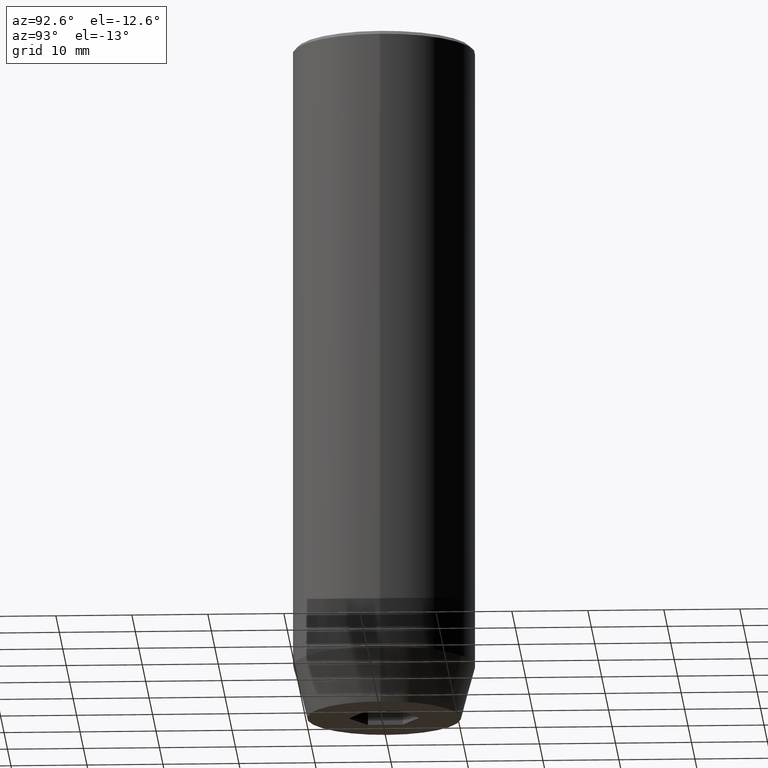
[diagram: clean part render]
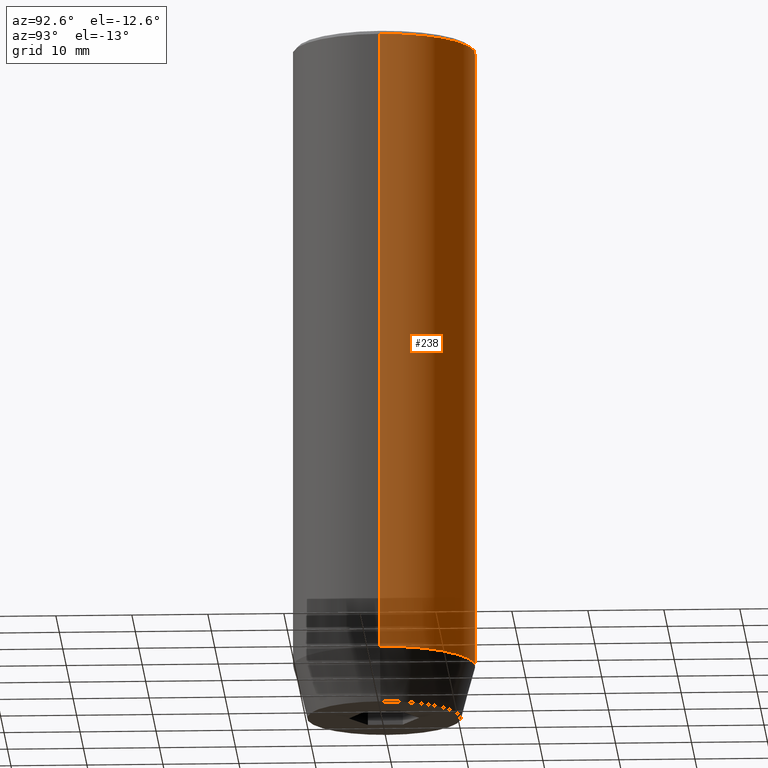
[diagram: same view with one face highlighted and labeled with its STEP entity id]
A machine part, auxiliary view. The second image highlights one B-rep face of the part: STEP entity #238.
In plain terms, the highlighted cylindrical surface (partial cylindrical patch) has radius 12 mm, axis along (-0, -0, 1).
Its self-contained STEP definition (entity closure, byte-faithful):
#26 = CARTESIAN_POINT ( 'NONE',  ( 12.00000000000000000, 0.000000000000000000, 0.000000000000000000 ) ) ;
#30 = AXIS2_PLACEMENT_3D ( 'NONE', #285, #470, #517 ) ;
#62 = CIRCLE ( 'NONE', #30, 12.00000000000000000 ) ;
#64 = CARTESIAN_POINT ( 'NONE',  ( -12.00000000000000000, 1.469576158976823947E-15, -82.99999999999998579 ) ) ;
#88 = DIRECTION ( 'NONE',  ( 1.000000000000000000, 0.000000000000000000, 0.000000000000000000 ) ) ;
#89 = DIRECTION ( 'NONE',  ( -0.000000000000000000, -0.000000000000000000, 1.000000000000000000 ) ) ;
#90 = VERTEX_POINT ( 'NONE', #64 ) ;
#121 = CIRCLE ( 'NONE', #448, 12.00000000000000000 ) ;
#128 = CARTESIAN_POINT ( 'NONE',  ( 0.000000000000000000, 0.000000000000000000, -0.5000000000000056621 ) ) ;
#141 = EDGE_LOOP ( 'NONE', ( #216, #275, #318, #353 ) ) ;
#164 = VECTOR ( 'NONE', #206, 1000.000000000000000 ) ;
#206 = DIRECTION ( 'NONE',  ( -0.000000000000000000, -0.000000000000000000, 1.000000000000000000 ) ) ;
#216 = ORIENTED_EDGE ( 'NONE', *, *, #455, .T. ) ;
#218 = LINE ( 'NONE', #450, #511 ) ;
#238 = ADVANCED_FACE ( 'NONE', ( #311 ), #396, .T. ) ;
#268 = EDGE_CURVE ( 'NONE', #440, #365, #121, .T. ) ;
#275 = ORIENTED_EDGE ( 'NONE', *, *, #534, .T. ) ;
#285 = CARTESIAN_POINT ( 'NONE',  ( 0.000000000000000000, 0.000000000000000000, -82.99999999999998579 ) ) ;
#303 = DIRECTION ( 'NONE',  ( 0.000000000000000000, 0.000000000000000000, -1.000000000000000000 ) ) ;
#311 = FACE_OUTER_BOUND ( 'NONE', #141, .T. ) ;
#318 = ORIENTED_EDGE ( 'NONE', *, *, #268, .T. ) ;
#338 = CARTESIAN_POINT ( 'NONE',  ( 12.00000000000000000, 0.000000000000000000, -0.5000000000000056621 ) ) ;
#353 = ORIENTED_EDGE ( 'NONE', *, *, #395, .F. ) ;
#365 = VERTEX_POINT ( 'NONE', #338 ) ;
#373 = AXIS2_PLACEMENT_3D ( 'NONE', #449, #405, #537 ) ;
#395 = EDGE_CURVE ( 'NONE', #407, #365, #475, .T. ) ;
#396 = CYLINDRICAL_SURFACE ( 'NONE', #373, 12.00000000000000000 ) ;
#405 = DIRECTION ( 'NONE',  ( -0.000000000000000000, -0.000000000000000000, 1.000000000000000000 ) ) ;
#407 = VERTEX_POINT ( 'NONE', #512 ) ;
#422 = CARTESIAN_POINT ( 'NONE',  ( -12.00000000000000000, 1.469576158976823947E-15, -0.5000000000000056621 ) ) ;
#440 = VERTEX_POINT ( 'NONE', #422 ) ;
#448 = AXIS2_PLACEMENT_3D ( 'NONE', #128, #303, #88 ) ;
#449 = CARTESIAN_POINT ( 'NONE',  ( 0.000000000000000000, 0.000000000000000000, 0.000000000000000000 ) ) ;
#450 = CARTESIAN_POINT ( 'NONE',  ( -12.00000000000000000, 1.469576158976823947E-15, 0.000000000000000000 ) ) ;
#455 = EDGE_CURVE ( 'NONE', #407, #90, #62, .T. ) ;
#470 = DIRECTION ( 'NONE',  ( -0.000000000000000000, -0.000000000000000000, 1.000000000000000000 ) ) ;
#475 = LINE ( 'NONE', #26, #164 ) ;
#511 = VECTOR ( 'NONE', #89, 1000.000000000000000 ) ;
#512 = CARTESIAN_POINT ( 'NONE',  ( 12.00000000000000000, 0.000000000000000000, -82.99999999999998579 ) ) ;
#517 = DIRECTION ( 'NONE',  ( 1.000000000000000000, 0.000000000000000000, 0.000000000000000000 ) ) ;
#534 = EDGE_CURVE ( 'NONE', #90, #440, #218, .T. ) ;
#537 = DIRECTION ( 'NONE',  ( 1.000000000000000000, 0.000000000000000000, 0.000000000000000000 ) ) ;